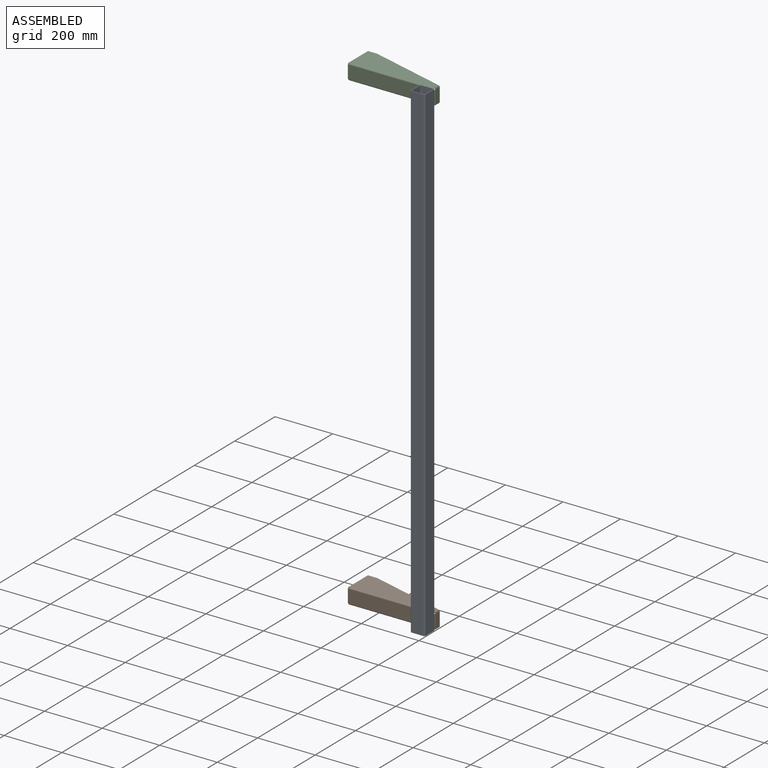
[diagram: assembled view]
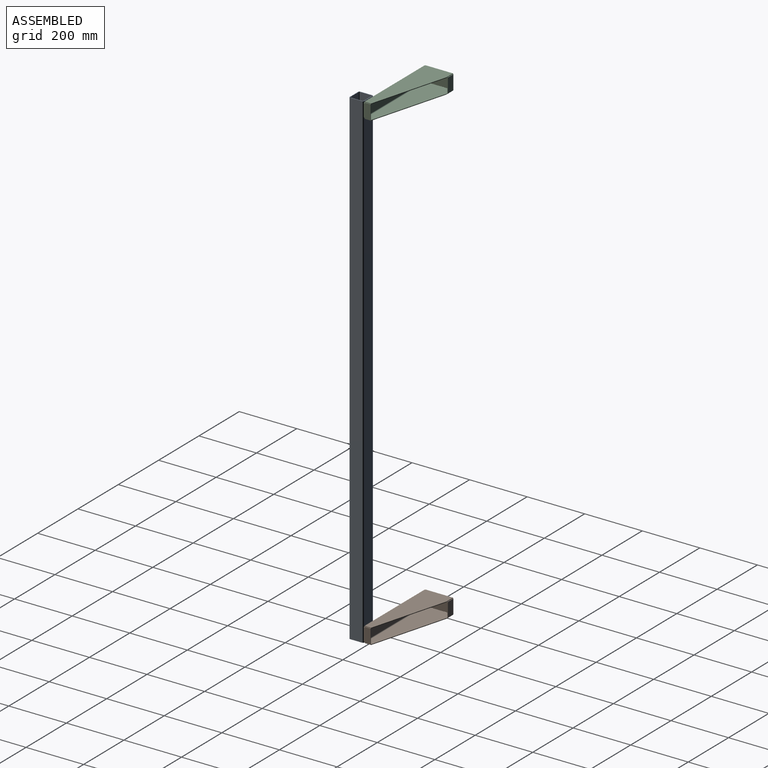
[diagram: assembled view, second angle]
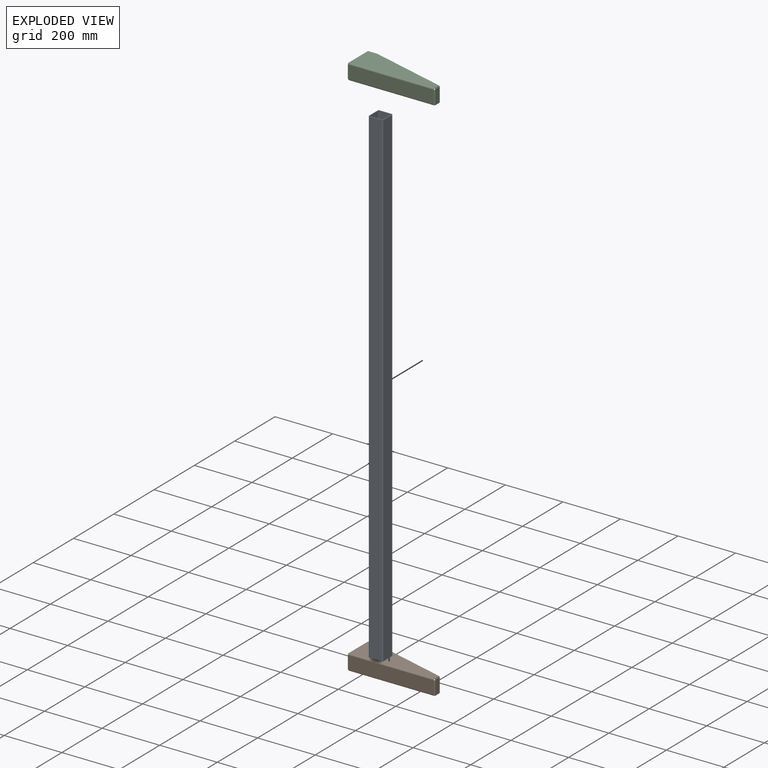
[diagram: exploded view]
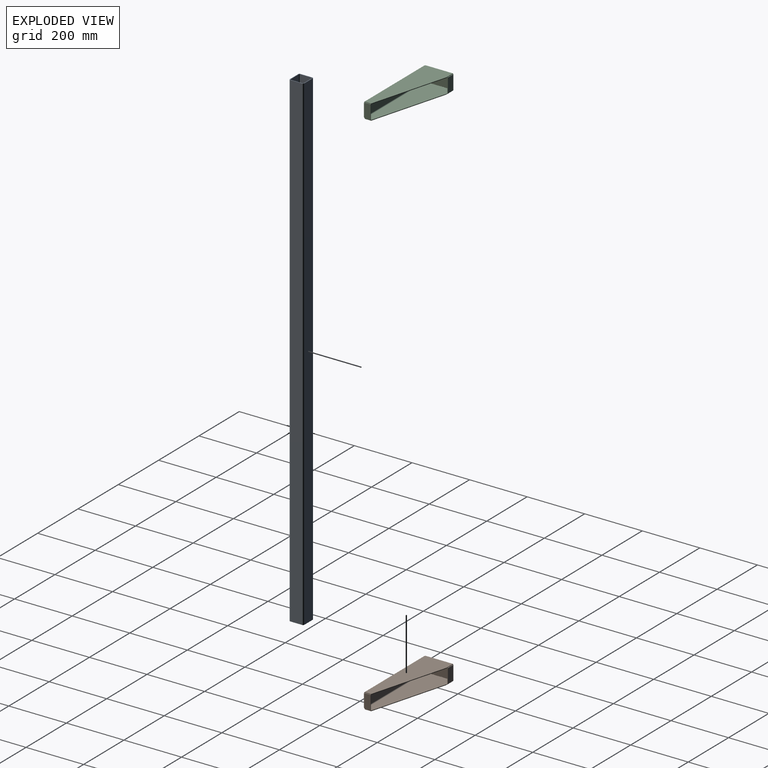
[diagram: exploded view, second angle]
ASSEMBLY  parts=3 mates=6
PART A: 18 faces, bbox 50x1700x50 mm
  f0: plane 1700x42mm, normal (1,0,0), area 71400mm2, adj f1,f15,f16,f17
  f1: cylinder r=4mm len=1700mm, axis (0,1,0), area 10681.4mm2, adj f0,f2,f16,f17
  f2: plane 1700x42mm, normal (0,0,1), area 71400mm2, adj f1,f3,f16,f17
  f3: cylinder r=4mm len=1700mm, axis (0,1,0), area 10681.4mm2, adj f2,f4,f16,f17
  f4: plane 1700x42mm, normal (-1,0,0), area 71400mm2, adj f3,f5,f16,f17
  f5: cylinder r=4mm len=1700mm, axis (0,1,0), area 10681.4mm2, adj f4,f6,f16,f17
  f6: plane 1700x42mm, normal (0,0,-1), area 71400mm2, adj f5,f15,f16,f17
  f7: cylinder r=2mm len=1700mm, axis (0,1,0), area 5340.7mm2, adj f8,f14,f16,f17
  f8: plane 1700x42mm, normal (0,0,1), area 71400mm2, adj f7,f9,f16,f17
  f9: cylinder r=2mm len=1700mm, axis (0,1,0), area 5340.7mm2, adj f8,f10,f16,f17
  f10: plane 1700x42mm, normal (1,0,0), area 71400mm2, adj f9,f11,f16,f17
  f11: cylinder r=2mm len=1700mm, axis (0,1,0), area 5340.7mm2, adj f10,f12,f16,f17
  f12: plane 1700x42mm, normal (0,0,-1), area 71400mm2, adj f11,f13,f16,f17
  f13: cylinder r=2mm len=1700mm, axis (0,1,0), area 5340.7mm2, adj f12,f14,f16,f17
  f14: plane 1700x42mm, normal (-1,0,0), area 71400mm2, adj f7,f13,f16,f17
  f15: cylinder r=4mm len=1700mm, axis (0,1,0), area 10681.4mm2, adj f0,f6,f16,f17
  f16: plane 50x50mm, normal (0,-1,0), area 373.7mm2, adj f0,f1,f2,f3,f4,f5,f6,f7
  f17: plane 50x50mm, normal (0,1,0), area 373.7mm2, adj f0,f1,f2,f3,f4,f5,f6,f7
PART B: 58 faces, bbox 54x102x304 mm
  f0: plane 295.4x45.4mm, normal (0,1,0), area 13411.2mm2, adj f11,f30,f43,f56
  f1: plane 295.4x45.4mm, normal (0,-1,0), area 13411.2mm2, adj f12,f31,f44,f57
  f2: plane 2.28x2mm, normal (0,1,0), area 4.6mm2, adj f3,f7,f8,f10
  f3: plane 20.7x2mm, normal (1,0,0), area 41.4mm2, adj f2,f6,f7,f8
  f4: plane 2.28x2mm, normal (0,1,0), area 4.6mm2, adj f5,f7,f8,f9
  f5: plane 20.7x2mm, normal (-1,0,0), area 41.4mm2, adj f4,f6,f7,f8
  f6: plane 49.96x2mm, normal (0,-1,0), area 99.9mm2, adj f3,f5,f7,f8
  f7: plane 49.96x20.7mm, normal (0,0,1), area 1034.2mm2, adj f2,f3,f4,f5,f6,f11
  f8: plane 49.96x20.7mm, normal (0,0,-1), area 1034.2mm2, adj f2,f3,f4,f5,f6,f12
  f9: plane 4.3x4.3mm, normal (-1,0,0), area 10.4mm2, adj f4,f11,f12,f55
  f10: plane 4.3x4.3mm, normal (1,0,0), area 10.4mm2, adj f2,f11,f12,f42
  f11: cylinder r=4.3mm len=45.4mm, axis (-1,0,0), area 306.7mm2, adj f0,f7,f9,f10
  f12: cylinder r=2.3mm len=45.4mm, axis (-1,0,0), area 164mm2, adj f1,f8,f9,f10
  f13: plane 2.28x2mm, normal (0,1,0), area 4.6mm2, adj f14,f17,f18,f28
  f14: plane 93.4x2mm, normal (-1,0,0), area 186.8mm2, adj f13,f17,f18,f24
  f15: plane 2.28x2mm, normal (0,1,0), area 4.6mm2, adj f16,f17,f18,f29
  f16: plane 93.4x2mm, normal (1,0,0), area 186.8mm2, adj f15,f17,f18,f25
  f17: plane 93.4x49.96mm, normal (0,0,-1), area 4666.3mm2, adj f13,f14,f15,f16,f26,f30
  f18: plane 93.4x49.96mm, normal (0,0,1), area 4666.3mm2, adj f13,f14,f15,f16,f27,f31
  f19: plane 49.96x2mm, normal (0,0,1), area 99.9mm2, adj f20,f21,f22,f23
  f20: plane 25.7x2mm, normal (-1,0,0), area 51.4mm2, adj f19,f22,f23,f24
  f21: plane 25.7x2mm, normal (1,0,0), area 51.4mm2, adj f19,f22,f23,f25
  f22: plane 49.96x25.7mm, normal (0,-1,0), area 1284mm2, adj f19,f20,f21,f26
  f23: plane 49.96x25.7mm, normal (0,1,0), area 1284mm2, adj f19,f20,f21,f27
  f24: plane 4.3x4.3mm, normal (-1,0,0), area 10.4mm2, adj f14,f20,f26,f27
  f25: plane 4.3x4.3mm, normal (1,0,0), area 10.4mm2, adj f16,f21,f26,f27
  f26: cylinder r=4.3mm len=49.96mm, axis (-1,0,0), area 337.5mm2, adj f17,f22,f24,f25
  f27: cylinder r=2.3mm len=49.96mm, axis (-1,0,0), area 180.5mm2, adj f18,f23,f24,f25
  f28: plane 4.3x4.3mm, normal (-1,0,0), area 10.4mm2, adj f13,f30,f31,f54
  f29: plane 4.3x4.3mm, normal (1,0,0), area 10.4mm2, adj f15,f30,f31,f41
  f30: cylinder r=4.3mm len=45.4mm, axis (-1,0,0), area 306.7mm2, adj f0,f17,f28,f29
  f31: cylinder r=2.3mm len=45.4mm, axis (-1,0,0), area 164mm2, adj f1,f18,f28,f29
  f32: plane 2.28x2mm, normal (0,1,0), area 4.6mm2, adj f33,f39,f40,f41
  f33: plane 95.7x2mm, normal (0,0,-1), area 191.4mm2, adj f32,f38,f39,f40
  f34: plane 2.28x2mm, normal (0,1,0), area 4.6mm2, adj f35,f39,f40,f42
  f35: plane 20.7x2mm, normal (0,0,1), area 41.4mm2, adj f34,f36,f39,f40
  f36: plane 2x0.56mm, normal (0,0,1), area 1.1mm2, adj f35,f37,f39,f40
  f37: plane 267.98x74.44mm, normal (0,-0.96,0.27), area 556.3mm2, adj f36,f38,f39,f40
  f38: plane 31.98x2mm, normal (0,-1,0), area 64mm2, adj f33,f37,f39,f40
  f39: plane 299.96x95.7mm, normal (1,0,0), area 18732.1mm2, adj f32,f33,f34,f35,f36,f37,f38,f43
  f40: plane 299.96x95.7mm, normal (-1,0,0), area 18732.1mm2, adj f32,f33,f34,f35,f36,f37,f38,f44
  f41: plane 4.3x4.3mm, normal (0,0,-1), area 10.4mm2, adj f29,f32,f43,f44
  f42: plane 4.3x4.3mm, normal (0,0,1), area 10.4mm2, adj f10,f34,f43,f44
  f43: cylinder r=4.3mm len=295.4mm, axis (0,0,-1), area 1995.3mm2, adj f0,f39,f41,f42
  f44: cylinder r=2.3mm len=295.4mm, axis (0,0,-1), area 1067.2mm2, adj f1,f40,f41,f42
  f45: plane 2.28x2mm, normal (0,1,0), area 4.6mm2, adj f46,f52,f53,f55
  f46: plane 20.7x2mm, normal (0,0,1), area 41.4mm2, adj f45,f51,f52,f53
  f47: plane 2.28x2mm, normal (0,1,0), area 4.6mm2, adj f48,f52,f53,f54
  f48: plane 95.7x2mm, normal (0,0,-1), area 191.4mm2, adj f47,f49,f52,f53
  f49: plane 31.98x2mm, normal (0,-1,0), area 64mm2, adj f48,f50,f52,f53
  f50: plane 267.98x74.44mm, normal (0,-0.96,0.27), area 556.3mm2, adj f49,f51,f52,f53
  f51: plane 2x0.56mm, normal (0,0,1), area 1.1mm2, adj f46,f50,f52,f53
  f52: plane 299.96x95.7mm, normal (-1,0,0), area 18732.1mm2, adj f45,f46,f47,f48,f49,f50,f51,f56
  f53: plane 299.96x95.7mm, normal (1,0,0), area 18732.1mm2, adj f45,f46,f47,f48,f49,f50,f51,f57
  f54: plane 4.3x4.3mm, normal (0,0,-1), area 10.4mm2, adj f28,f47,f56,f57
  f55: plane 4.3x4.3mm, normal (0,0,1), area 10.4mm2, adj f9,f45,f56,f57
  f56: cylinder r=4.3mm len=295.4mm, axis (0,0,-1), area 1995.3mm2, adj f0,f52,f54,f55
  f57: cylinder r=2.3mm len=295.4mm, axis (0,0,-1), area 1067.2mm2, adj f1,f53,f54,f55
PART C: same geometry as B
PLACE A rot(axis=(-0.58,-0.58,0.58),120deg) t=(60.32,46.34,-853.64)mm fixed
PLACE B rot(axis=(0.71,0,0.71),180deg) t=(-66.68,71.34,-826.64)mm
PLACE C rot(axis=(0.71,0,0.71),180deg) t=(-66.68,71.34,819.36)mm
MATE planar B.f0 <-> A.f0  axis (0,-1,0) through (81.02,71.34,-826.64)mm
MATE planar B.f7 <-> A.f6  axis (1,0,0) through (85.32,96.34,-826.64)mm
MATE planar A.f0 <-> C.f0  axis (0,1,0) through (81.32,71.34,-3.64)mm
MATE planar B.f52 <-> A.f17  axis (0,0,-1) through (-98.98,111.23,-853.64)mm
MATE planar C.f39 <-> A.f16  axis (0,0,1) through (-98.98,111.23,846.36)mm
MATE planar A.f6 <-> C.f56  axis (1,0,0) through (85.32,46.34,-3.64)mm
